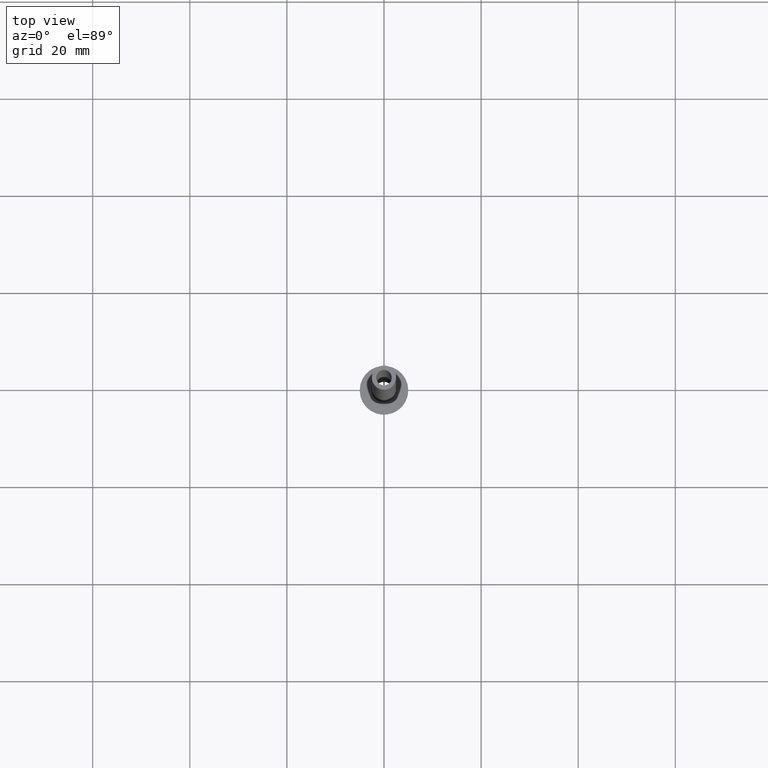
[diagram: clean part render]
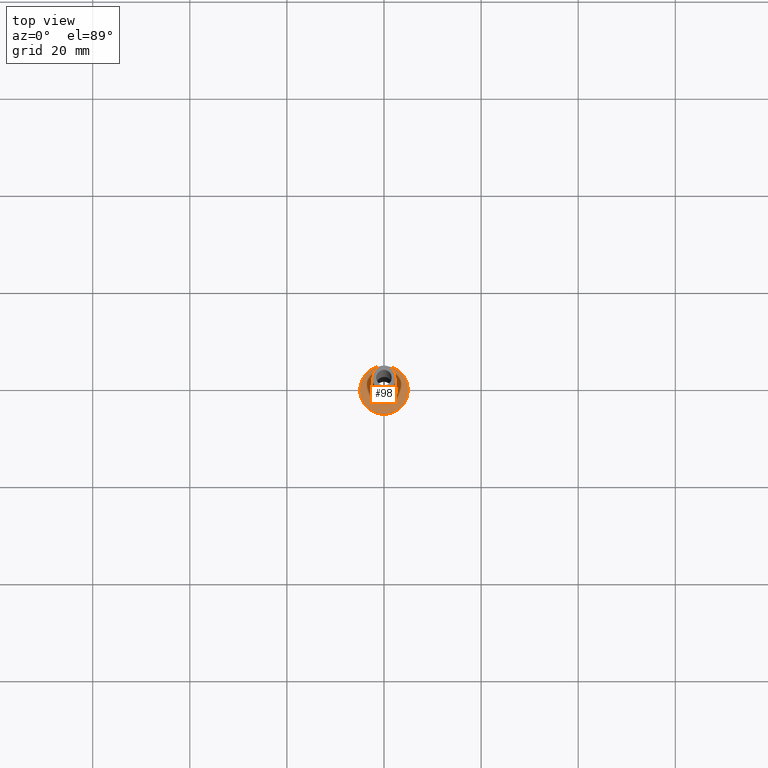
[diagram: same view with one face highlighted and labeled with its STEP entity id]
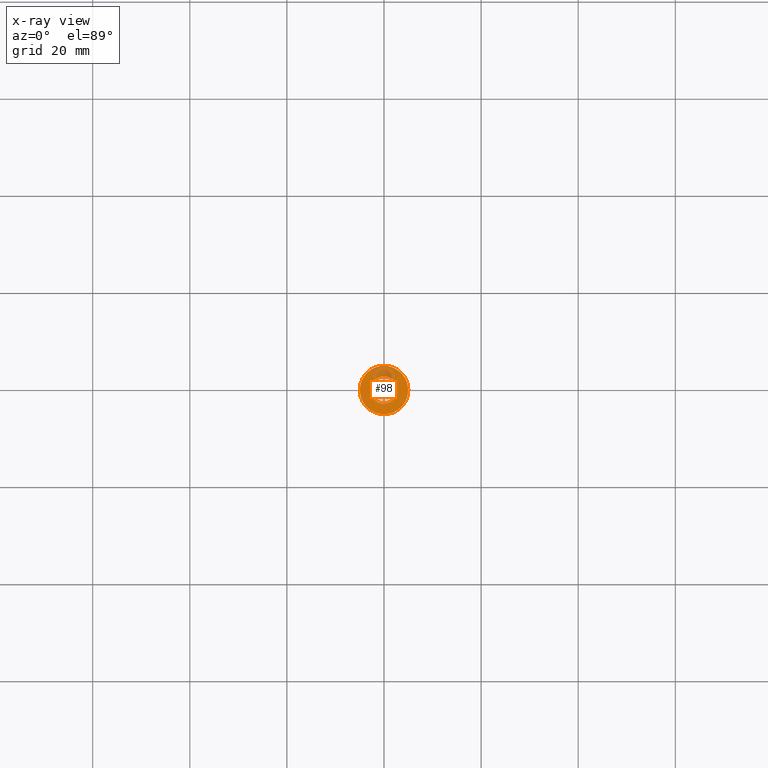
[diagram: x-ray of the same camera — body ghosted, the highlighted face saturated]
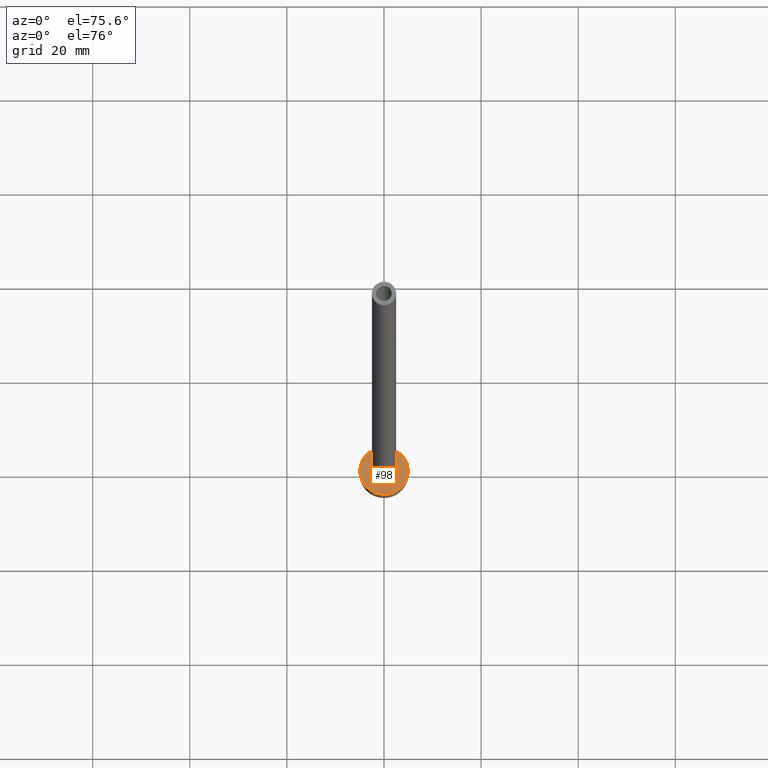
[diagram: same view with one face highlighted and labeled with its STEP entity id]
A machine part, top view. The second image highlights one B-rep face of the part: STEP entity #98.
The next image is the same camera in x-ray: the body ghosted, the highlighted face saturated — about 20% of this face is hidden behind the body in this view.
A second angle (auxiliary view) of the same face is appended — the face is thin or edge-on in the first view.
In plain terms, the highlighted planar face has unit normal (0, 0, 1).
Its self-contained STEP definition (entity closure, byte-faithful):
#14 = CARTESIAN_POINT ( 'NONE',  ( 0.000000000000000000, 0.000000000000000000, 3.000000000000000000 ) ) ;
#15 = VERTEX_POINT ( 'NONE', #67 ) ;
#17 = DIRECTION ( 'NONE',  ( -0.000000000000000000, -0.000000000000000000, -1.000000000000000000 ) ) ;
#45 = CIRCLE ( 'NONE', #331, 2.799999999999999822 ) ;
#48 = CARTESIAN_POINT ( 'NONE',  ( 0.000000000000000000, 0.000000000000000000, 3.000000000000000000 ) ) ;
#55 = DIRECTION ( 'NONE',  ( 0.000000000000000000, 0.000000000000000000, 1.000000000000000000 ) ) ;
#67 = CARTESIAN_POINT ( 'NONE',  ( 2.799999999999999822, 0.000000000000000000, 2.999999999999998668 ) ) ;
#98 = ADVANCED_FACE ( 'NONE', ( #168, #128 ), #307, .T. ) ;
#106 = CIRCLE ( 'NONE', #172, 2.799999999999999822 ) ;
#114 = DIRECTION ( 'NONE',  ( -0.000000000000000000, -0.000000000000000000, -1.000000000000000000 ) ) ;
#128 = FACE_OUTER_BOUND ( 'NONE', #267, .T. ) ;
#133 = CARTESIAN_POINT ( 'NONE',  ( -5.000000000000000000, 0.000000000000000000, 3.000000000000000000 ) ) ;
#140 = ORIENTED_EDGE ( 'NONE', *, *, #282, .T. ) ;
#153 = VERTEX_POINT ( 'NONE', #248 ) ;
#160 = VERTEX_POINT ( 'NONE', #133 ) ;
#168 = FACE_BOUND ( 'NONE', #418, .T. ) ;
#172 = AXIS2_PLACEMENT_3D ( 'NONE', #437, #114, #394 ) ;
#193 = DIRECTION ( 'NONE',  ( 0.000000000000000000, 0.000000000000000000, 1.000000000000000000 ) ) ;
#200 = DIRECTION ( 'NONE',  ( 1.000000000000000000, 0.000000000000000000, 0.000000000000000000 ) ) ;
#204 = CIRCLE ( 'NONE', #368, 5.000000000000000000 ) ;
#207 = AXIS2_PLACEMENT_3D ( 'NONE', #451, #445, #401 ) ;
#232 = CARTESIAN_POINT ( 'NONE',  ( -2.799999999999999822, 3.429011037612589276E-16, 2.999999999999998668 ) ) ;
#248 = CARTESIAN_POINT ( 'NONE',  ( 5.000000000000000000, 6.123233995736766282E-16, 3.000000000000000000 ) ) ;
#267 = EDGE_LOOP ( 'NONE', ( #365, #351 ) ) ;
#282 = EDGE_CURVE ( 'NONE', #353, #15, #45, .T. ) ;
#307 = PLANE ( 'NONE',  #207 ) ;
#315 = EDGE_CURVE ( 'NONE', #15, #353, #106, .T. ) ;
#328 = DIRECTION ( 'NONE',  ( 1.000000000000000000, 0.000000000000000000, 0.000000000000000000 ) ) ;
#331 = AXIS2_PLACEMENT_3D ( 'NONE', #14, #17, #397 ) ;
#334 = CARTESIAN_POINT ( 'NONE',  ( 0.000000000000000000, 0.000000000000000000, 3.000000000000000000 ) ) ;
#344 = EDGE_CURVE ( 'NONE', #153, #160, #204, .T. ) ;
#351 = ORIENTED_EDGE ( 'NONE', *, *, #344, .T. ) ;
#353 = VERTEX_POINT ( 'NONE', #232 ) ;
#359 = EDGE_CURVE ( 'NONE', #160, #153, #405, .T. ) ;
#365 = ORIENTED_EDGE ( 'NONE', *, *, #359, .T. ) ;
#368 = AXIS2_PLACEMENT_3D ( 'NONE', #48, #193, #328 ) ;
#394 = DIRECTION ( 'NONE',  ( 1.000000000000000000, 0.000000000000000000, 0.000000000000000000 ) ) ;
#397 = DIRECTION ( 'NONE',  ( 1.000000000000000000, 0.000000000000000000, 0.000000000000000000 ) ) ;
#401 = DIRECTION ( 'NONE',  ( 1.000000000000000000, 0.000000000000000000, -0.000000000000000000 ) ) ;
#405 = CIRCLE ( 'NONE', #460, 5.000000000000000000 ) ;
#414 = ORIENTED_EDGE ( 'NONE', *, *, #315, .T. ) ;
#418 = EDGE_LOOP ( 'NONE', ( #414, #140 ) ) ;
#437 = CARTESIAN_POINT ( 'NONE',  ( 0.000000000000000000, 0.000000000000000000, 3.000000000000000000 ) ) ;
#445 = DIRECTION ( 'NONE',  ( 0.000000000000000000, 0.000000000000000000, 1.000000000000000000 ) ) ;
#451 = CARTESIAN_POINT ( 'NONE',  ( 0.000000000000000000, 0.000000000000000000, 3.000000000000000000 ) ) ;
#460 = AXIS2_PLACEMENT_3D ( 'NONE', #334, #55, #200 ) ;